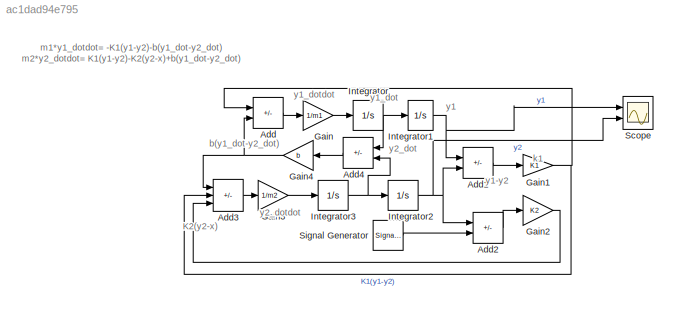
MODEL slx_ac1dad94e795
KIND model
CONFIG AbsTol = auto
CONFIG EnableMultiTasking = off
CONFIG FixedStep = auto
CONFIG MaxStep = auto
CONFIG MinStep = auto
CONFIG RelTol = 1e-3
CONFIG SampleTimeConstraint = Unconstrained
CONFIG SolverName = VariableStepAuto
CONFIG StartTime = 0.0
CONFIG StopTime = 100
BLOCK [Sum] Add
  IconShape = rectangular
  Inputs = --
  Ports = [2, 1]
BLOCK [Sum] Add1
  IconShape = rectangular
  Inputs = +-
  Ports = [2, 1]
BLOCK [Sum] Add2
  IconShape = rectangular
  Inputs = +-
  Ports = [2, 1]
BLOCK [Sum] Add3
  IconShape = rectangular
  Inputs = ++-
  Ports = [3, 1]
BLOCK [Sum] Add4
  IconShape = rectangular
  Inputs = +-
  Ports = [2, 1]
BLOCK [Gain] Gain
  Gain = 1/m1
BLOCK [Gain] Gain1
  Gain = K1
BLOCK [Gain] Gain2
  Gain = K2
BLOCK [Gain] Gain3
  Gain = 1/m2
BLOCK [Gain] Gain4
  Gain = b
BLOCK [Integrator] Integrator
  Ports = [1, 1]
BLOCK [Integrator] Integrator1
  Ports = [1, 1]
BLOCK [Integrator] Integrator2
  Ports = [1, 1]
BLOCK [Integrator] Integrator3
  Ports = [1, 1]
BLOCK [Scope] Scope
  Floating = off
  NumInputPorts = 2
  Ports = [2]
  ScopeSpecificationString = Simulink.scopes.TimeScopeBlockCfg('CurrentConfiguration', extmgr.ConfigurationSet(extmgr.Configuration('Core','General UI',true),extmgr.Configuration('Core','Source UI',true),extmgr.Configuration('Sources','WiredSimulink',true),extmgr.Configuration('Visuals','Time Domain',true,'SerializedDisplays',{struct('MinYLimReal','-0.67049','MaxYLimReal','0.56845','YLabelReal','','MinYLimMag','0.00000','MaxY...<+2003ch>
BLOCK [SignalGenerator] Signal Generator
  Amplitude = 0.25
  Ports = [0, 1]
  Units = rad/sec
  WaveForm = random
ANNOTATION (root): y1_dotdot
ANNOTATION (root): K2(y2-x)
ANNOTATION (root): b(y1_dot-y2_dot)
ANNOTATION (root): y1-y2
ANNOTATION (root): y1
ANNOTATION (root): y1_dot
ANNOTATION (root): y2_dot
ANNOTATION (root): y2_dotdot
ANNOTATION (root): m1*y1_dotdot= -K1(y1-y2)-b(y1_dot-y2_dot) m2*y2_dotdot= K1(y1-y2)-K2(y2-x)+b(y1_dot-y2_dot)
ANNOTATION (root): k1
LINE Add1:1 -> Gain1:1
LINE Add2:1 -> Gain2:1
LINE Add3:1 -> Gain3:1
LINE Add4:1 -> Gain4:1
LINE Add:1 -> Gain:1
NET Gain1:1 -> Add3:2, Add:1
LINE Gain2:1 -> Add3:3
LINE Gain3:1 -> Integrator3:1
NET Gain4:1 -> Add3:1, Add:2
LINE Gain:1 -> Integrator:1
NET Integrator1:1 -> Add1:1, Scope:1
NET Integrator2:1 -> Add1:2, Add2:1, Scope:2
NET Integrator3:1 -> Add4:2, Integrator2:1
NET Integrator:1 -> Add4:1, Integrator1:1
LINE Signal Generator:1 -> Add2:2
note: NET lines group one-source signal fan-out (src -> all destinations, sorted); 1:1 wires keep LINE
